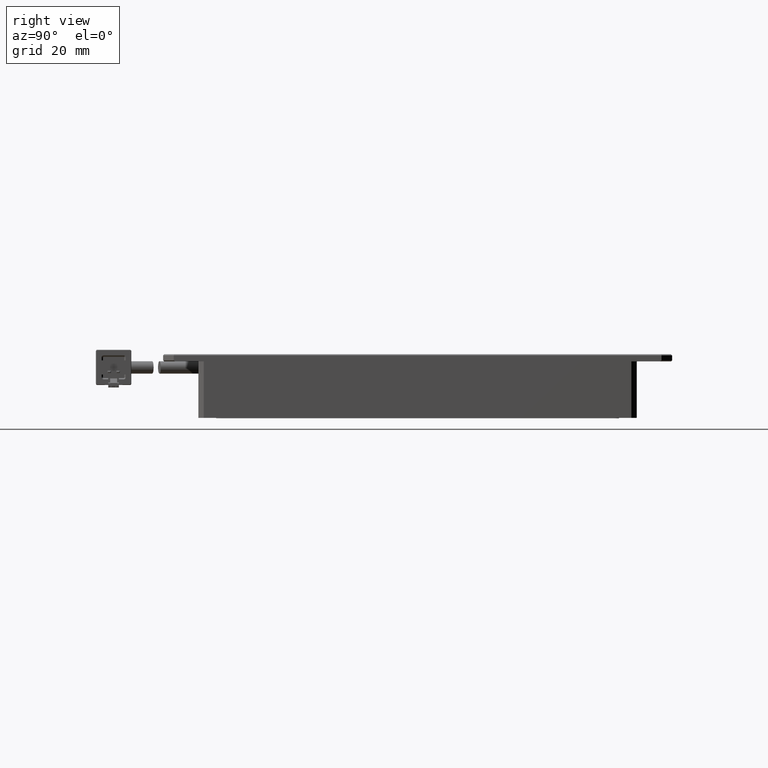
[diagram: clean part render]
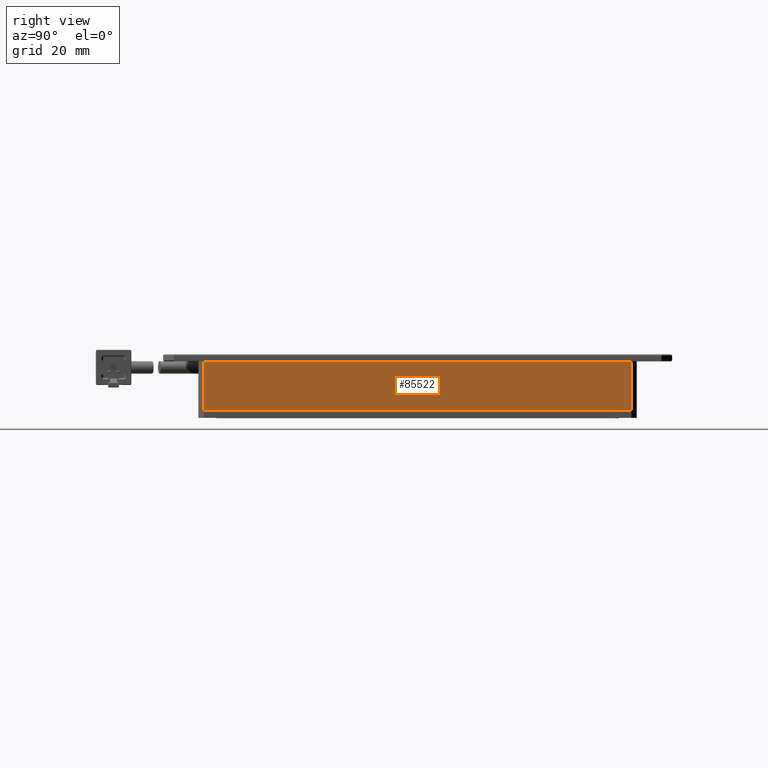
[diagram: same view with one face highlighted and labeled with its STEP entity id]
A machine part, right view. The second image highlights one B-rep face of the part: STEP entity #85522.
In plain terms, the highlighted planar face has unit normal (-1, 0, 0).
Its self-contained STEP definition (entity closure, byte-faithful):
#2188 = EDGE_CURVE ( 'NONE', #9096, #74163, #75690, .T. ) ;
#2554 = CARTESIAN_POINT ( 'NONE',  ( 62.64490263459336500, 72.88965253913710300, -1.637058544279312900E-011 ) ) ;
#8117 = ORIENTED_EDGE ( 'NONE', *, *, #75204, .F. ) ;
#9096 = VERTEX_POINT ( 'NONE', #45735 ) ;
#10865 = VECTOR ( 'NONE', #18653, 1000.000000000000000 ) ;
#12907 = CARTESIAN_POINT ( 'NONE',  ( 62.64490263459336500, -51.11034746086289000, 13.99999999998362900 ) ) ;
#12945 = LINE ( 'NONE', #81314, #33704 ) ;
#18653 = DIRECTION ( 'NONE',  ( -0.0000000000000000000, -1.000000000000000000, -0.0000000000000000000 ) ) ;
#22210 = ORIENTED_EDGE ( 'NONE', *, *, #2188, .F. ) ;
#26621 = DIRECTION ( 'NONE',  ( -0.0000000000000000000, -0.0000000000000000000, -1.000000000000000000 ) ) ;
#30304 = CARTESIAN_POINT ( 'NONE',  ( 62.64490263459336500, 71.38965253913713100, -1.637058544279312900E-011 ) ) ;
#33704 = VECTOR ( 'NONE', #26621, 1000.000000000000000 ) ;
#34832 = ORIENTED_EDGE ( 'NONE', *, *, #64909, .F. ) ;
#36972 = VECTOR ( 'NONE', #51838, 1000.000000000000000 ) ;
#39424 = CARTESIAN_POINT ( 'NONE',  ( 62.64490263459336500, -51.11034746086289000, 13.99999999998362900 ) ) ;
#39477 = LINE ( 'NONE', #12907, #36972 ) ;
#44180 = FACE_OUTER_BOUND ( 'NONE', #53020, .T. ) ;
#45735 = CARTESIAN_POINT ( 'NONE',  ( 62.64490263459336500, 71.38965253913710300, 13.99999999998362900 ) ) ;
#47265 = DIRECTION ( 'NONE',  ( 0.0000000000000000000, 0.0000000000000000000, 1.000000000000000000 ) ) ;
#51838 = DIRECTION ( 'NONE',  ( 0.0000000000000000000, 1.000000000000000000, -0.0000000000000000000 ) ) ;
#52428 = LINE ( 'NONE', #2554, #10865 ) ;
#53020 = EDGE_LOOP ( 'NONE', ( #22210, #8117, #62394, #34832 ) ) ;
#55818 = VERTEX_POINT ( 'NONE', #73244 ) ;
#57985 = AXIS2_PLACEMENT_3D ( 'NONE', #39424, #94045, #47265 ) ;
#60664 = EDGE_CURVE ( 'NONE', #87441, #55818, #12945, .T. ) ;
#62394 = ORIENTED_EDGE ( 'NONE', *, *, #60664, .T. ) ;
#64909 = EDGE_CURVE ( 'NONE', #74163, #55818, #52428, .T. ) ;
#66369 = CARTESIAN_POINT ( 'NONE',  ( 62.64490263459336500, -49.61034746086289700, 13.99999999998362900 ) ) ;
#73244 = CARTESIAN_POINT ( 'NONE',  ( 62.64490263459336500, -49.61034746086287600, -1.637232016626910500E-011 ) ) ;
#74163 = VERTEX_POINT ( 'NONE', #30304 ) ;
#75204 = EDGE_CURVE ( 'NONE', #87441, #9096, #39477, .T. ) ;
#75690 = LINE ( 'NONE', #84106, #96457 ) ;
#81314 = CARTESIAN_POINT ( 'NONE',  ( 62.64490263459336500, -49.61034746086289000, 13.99999999998362900 ) ) ;
#83902 = DIRECTION ( 'NONE',  ( -0.0000000000000000000, -0.0000000000000000000, -1.000000000000000000 ) ) ;
#84106 = CARTESIAN_POINT ( 'NONE',  ( 62.64490263459336500, 71.38965253913710300, 13.99999999998362900 ) ) ;
#85522 = ADVANCED_FACE ( 'NONE', ( #44180 ), #93705, .F. ) ;
#87441 = VERTEX_POINT ( 'NONE', #66369 ) ;
#93705 = PLANE ( 'NONE',  #57985 ) ;
#94045 = DIRECTION ( 'NONE',  ( -1.000000000000000000, 0.0000000000000000000, 0.0000000000000000000 ) ) ;
#96457 = VECTOR ( 'NONE', #83902, 1000.000000000000000 ) ;